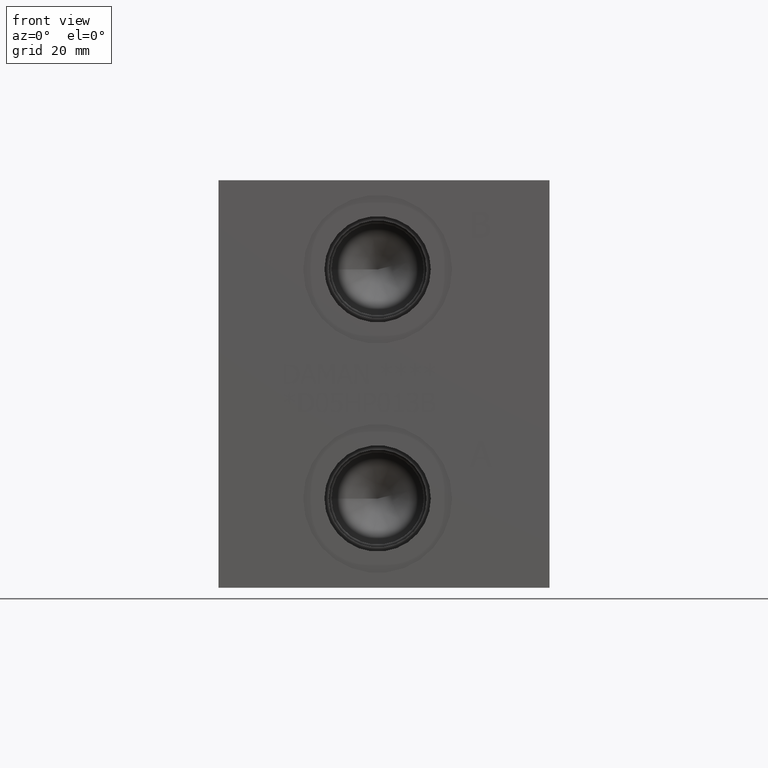
[diagram: clean part render]
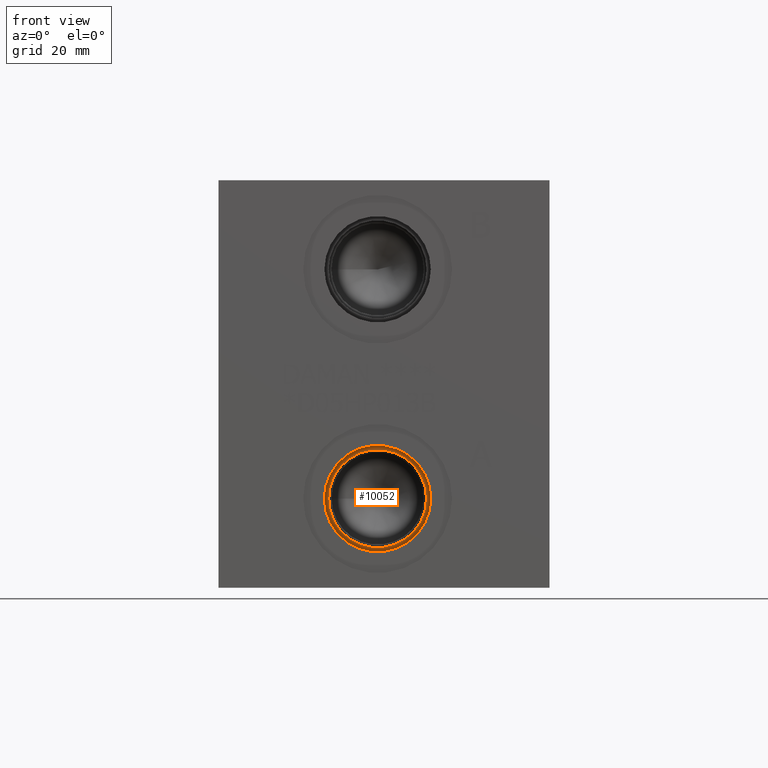
[diagram: same view with one face highlighted and labeled with its STEP entity id]
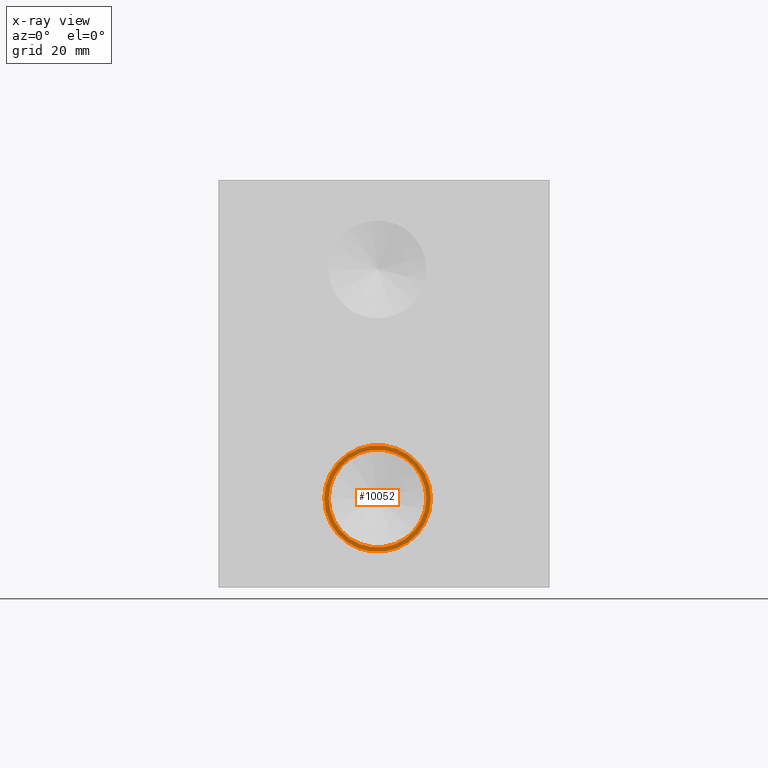
[diagram: x-ray of the same camera — body ghosted, the highlighted face saturated]
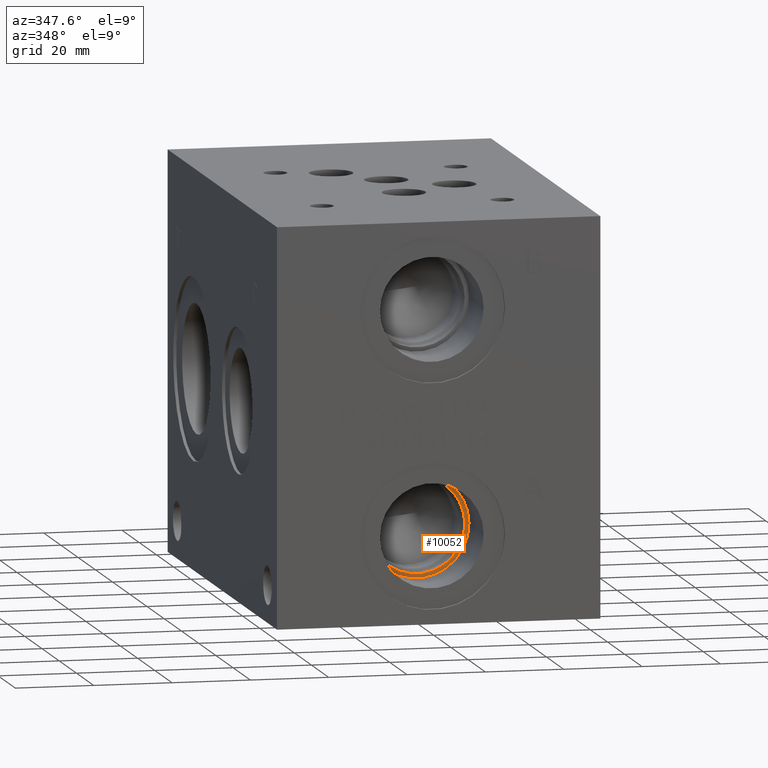
[diagram: same view with one face highlighted and labeled with its STEP entity id]
A machine part, front view. The second image highlights one B-rep face of the part: STEP entity #10052.
The next image is the same camera in x-ray: the body ghosted, the highlighted face saturated — about 0% of this face is hidden behind the body in this view.
A second angle (auxiliary view) of the same face is appended — the face is thin or edge-on in the first view.
In plain terms, the highlighted planar face has unit normal (0, 1, 0).
Its self-contained STEP definition (entity closure, byte-faithful):
#183=CIRCLE('',#10555,13.2715);
#184=CIRCLE('',#10556,13.2715);
#185=CIRCLE('',#10558,12.2047);
#186=CIRCLE('',#10559,12.2047);
#311=FACE_BOUND('',#1692,.T.);
#633=PLANE('',#10557);
#1116=FACE_OUTER_BOUND('',#1691,.T.);
#1691=EDGE_LOOP('',(#8826,#8827));
#1692=EDGE_LOOP('',(#8828,#8829));
#4814=VERTEX_POINT('',#17005);
#4815=VERTEX_POINT('',#17007);
#4816=VERTEX_POINT('',#17011);
#4817=VERTEX_POINT('',#17012);
#6179=EDGE_CURVE('',#4814,#4815,#183,.T.);
#6180=EDGE_CURVE('',#4815,#4814,#184,.T.);
#6181=EDGE_CURVE('',#4816,#4817,#185,.T.);
#6182=EDGE_CURVE('',#4817,#4816,#186,.T.);
#8826=ORIENTED_EDGE('',*,*,#6180,.F.);
#8827=ORIENTED_EDGE('',*,*,#6179,.F.);
#8828=ORIENTED_EDGE('',*,*,#6181,.T.);
#8829=ORIENTED_EDGE('',*,*,#6182,.T.);
#10052=ADVANCED_FACE('',(#1116,#311),#633,.F.);
#10555=AXIS2_PLACEMENT_3D('',#17008,#12496,#12497);
#10556=AXIS2_PLACEMENT_3D('',#17009,#12498,#12499);
#10557=AXIS2_PLACEMENT_3D('',#17010,#12500,#12501);
#10558=AXIS2_PLACEMENT_3D('',#17013,#12502,#12503);
#10559=AXIS2_PLACEMENT_3D('',#17014,#12504,#12505);
#12496=DIRECTION('center_axis',(0.,1.,0.));
#12497=DIRECTION('ref_axis',(1.,0.,0.));
#12498=DIRECTION('center_axis',(0.,1.,0.));
#12499=DIRECTION('ref_axis',(1.,0.,0.));
#12500=DIRECTION('center_axis',(0.,1.,0.));
#12501=DIRECTION('ref_axis',(0.,0.,1.));
#12502=DIRECTION('center_axis',(0.,1.,0.));
#12503=DIRECTION('ref_axis',(1.,0.,0.));
#12504=DIRECTION('center_axis',(0.,1.,0.));
#12505=DIRECTION('ref_axis',(1.,0.,0.));
#17005=CARTESIAN_POINT('',(26.4033,17.8816,22.225));
#17007=CARTESIAN_POINT('',(52.9463,17.8816,22.225));
#17008=CARTESIAN_POINT('Origin',(39.6748,17.8816,22.225));
#17009=CARTESIAN_POINT('Origin',(39.6748,17.8816,22.225));
#17010=CARTESIAN_POINT('Origin',(51.8795,17.8816,22.225));
#17011=CARTESIAN_POINT('',(51.8795,17.8816,22.225));
#17012=CARTESIAN_POINT('',(27.4701,17.8816,22.225));
#17013=CARTESIAN_POINT('Origin',(39.6748,17.8816,22.225));
#17014=CARTESIAN_POINT('Origin',(39.6748,17.8816,22.225));